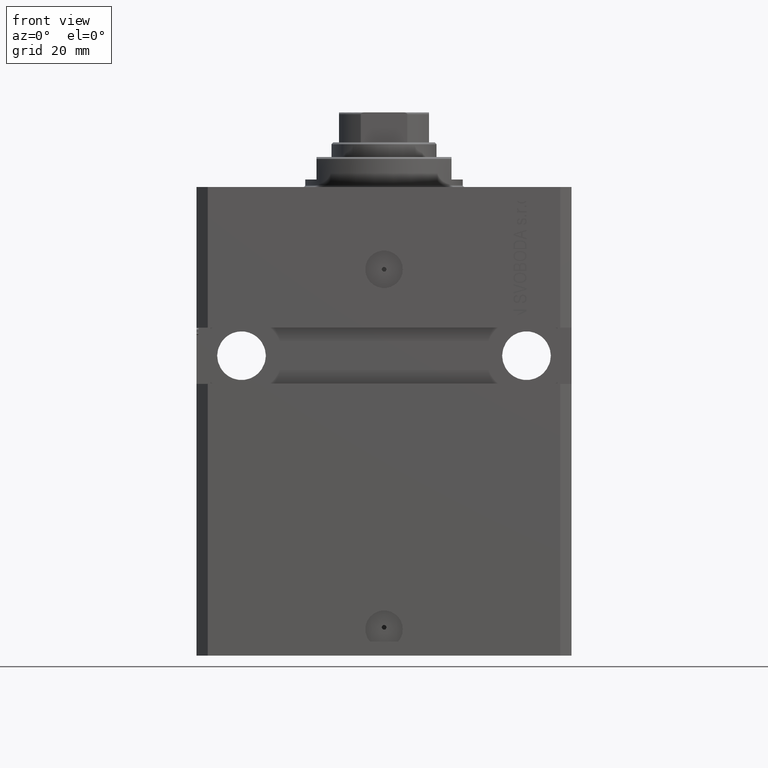
[diagram: clean part render]
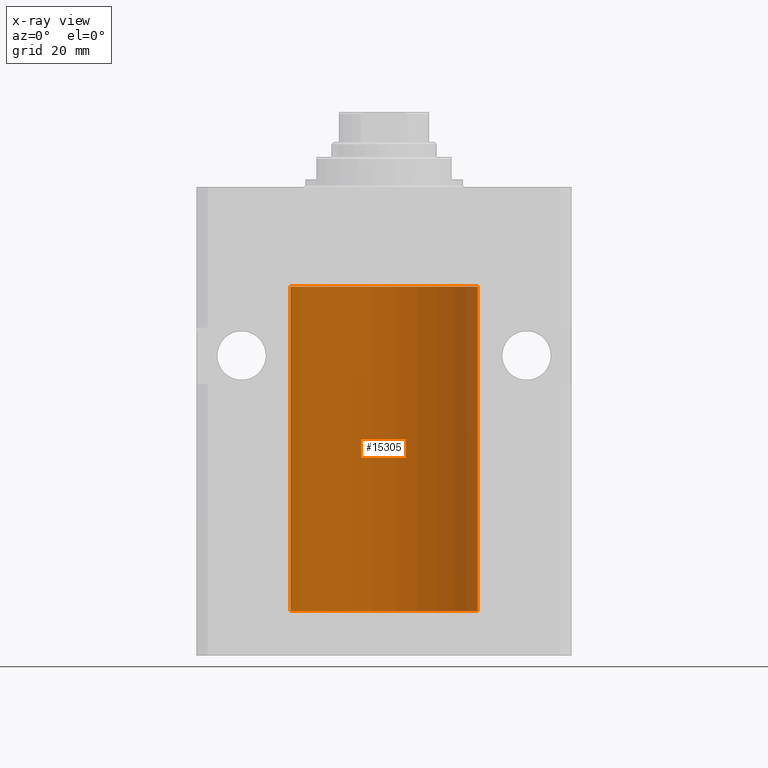
[diagram: x-ray — body ghosted, one internal face saturated and labeled with its STEP entity id]
A machine part, front view, then the same camera in x-ray: the body is ghosted and one INTERNAL B-rep face — a face not visible from any outside direction — is saturated and labeled: STEP entity #15305.
In plain terms, the highlighted cylindrical surface (partial cylindrical patch) has radius 25 mm, axis along (0, 0, 1).
Its self-contained STEP definition (entity closure, byte-faithful):
#2 = CARTESIAN_POINT ( 'NONE',  ( 24.99957883295564187, 0.1636780489658792026, -111.1087296133423479 ) ) ;
#720 = CARTESIAN_POINT ( 'NONE',  ( 25.00000000000000000, -2.424731304940744339E-15, -111.1250000000000000 ) ) ;
#1572 = VERTEX_POINT ( 'NONE', #720 ) ;
#1959 = B_SPLINE_CURVE_WITH_KNOTS ( 'NONE', 3,
 ( #29397, #6276, #6991, #44261, #17975, #3569, #44028, #24793, #28928, #43797, #21141, #35997 ),
 .UNSPECIFIED., .F., .F.,
 ( 4, 2, 2, 2, 2, 4 ),
 ( 1.767227884924492832E-18, 0.0002442639708601802699, 0.0004885279417203586966, 0.0009770558834406861681, 0.001465583825161013640, 0.001954111766881341111 ),
 .UNSPECIFIED. ) ;
#2427 = EDGE_CURVE ( 'NONE', #31365, #47512, #44591, .T. ) ;
#2986 = EDGE_CURVE ( 'NONE', #23958, #23286, #38003, .T. ) ;
#3287 = LINE ( 'NONE', #6937, #3339 ) ;
#3339 = VECTOR ( 'NONE', #47394, 1000.000000000000000 ) ;
#3569 = CARTESIAN_POINT ( 'NONE',  ( -24.99405295648007908, 0.5573304927633258021, -110.1734883293366920 ) ) ;
#4262 = CARTESIAN_POINT ( 'NONE',  ( 24.99815573945175373, 0.3253059702579679247, -109.9414084843269279 ) ) ;
#4302 = VERTEX_POINT ( 'NONE', #42879 ) ;
#5040 = CARTESIAN_POINT ( 'NONE',  ( 25.00000000000000000, 0.000000000000000000, -113.0999999999999943 ) ) ;
#6276 = CARTESIAN_POINT ( 'NONE',  ( -25.00000000000000000, 0.08259386895069686929, -109.8749999999999574 ) ) ;
#6520 = CYLINDRICAL_SURFACE ( 'NONE', #10301, 25.00000000000000000 ) ;
#6937 = CARTESIAN_POINT ( 'NONE',  ( -25.00000000000000000, 3.061616997868383043E-15, -113.0999999999999943 ) ) ;
#6991 = CARTESIAN_POINT ( 'NONE',  ( -24.99957903978828000, 0.1636401650351726467, -109.8912625904798546 ) ) ;
#7041 = VERTEX_POINT ( 'NONE', #26816 ) ;
#7444 = DIRECTION ( 'NONE',  ( 0.000000000000000000, 0.000000000000000000, 1.000000000000000000 ) ) ;
#7741 = ORIENTED_EDGE ( 'NONE', *, *, #2427, .T. ) ;
#8390 = LINE ( 'NONE', #41293, #12245 ) ;
#8647 = CARTESIAN_POINT ( 'NONE',  ( 25.00000000000008171, 3.486950403907965962E-13, -109.8749999999967315 ) ) ;
#10295 = EDGE_CURVE ( 'NONE', #7041, #23286, #36079, .T. ) ;
#10301 = AXIS2_PLACEMENT_3D ( 'NONE', #36229, #18211, #33058 ) ;
#10852 = LINE ( 'NONE', #43993, #36631 ) ;
#11007 = EDGE_CURVE ( 'NONE', #1572, #31365, #36401, .T. ) ;
#11112 = CARTESIAN_POINT ( 'NONE',  ( 0.000000000000000000, 0.000000000000000000, -26.60000000000000142 ) ) ;
#11113 = ORIENTED_EDGE ( 'NONE', *, *, #33178, .T. ) ;
#12245 = VECTOR ( 'NONE', #33976, 1000.000000000000000 ) ;
#14640 = CARTESIAN_POINT ( 'NONE',  ( 24.99218627891505307, 0.6250000000082391871, -110.4999999999990763 ) ) ;
#15285 = DIRECTION ( 'NONE',  ( 1.000000000000000000, 0.000000000000000000, 0.000000000000000000 ) ) ;
#15305 = ADVANCED_FACE ( 'NONE', ( #25271 ), #6520, .F. ) ;
#15354 = EDGE_CURVE ( 'NONE', #7041, #31810, #1959, .T. ) ;
#15487 = CARTESIAN_POINT ( 'NONE',  ( 24.99403021173655404, 0.5586305782632625672, -110.1747611144148635 ) ) ;
#16401 = EDGE_CURVE ( 'NONE', #4302, #31810, #3287, .T. ) ;
#17828 = CARTESIAN_POINT ( 'NONE',  ( 24.99405112861447265, 0.5574133879603476727, -110.8263877786898064 ) ) ;
#17975 = CARTESIAN_POINT ( 'NONE',  ( -24.99711159039963704, 0.3843660423108738455, -110.0004619305507561 ) ) ;
#18211 = DIRECTION ( 'NONE',  ( -0.000000000000000000, -0.000000000000000000, 1.000000000000000000 ) ) ;
#18946 = DIRECTION ( 'NONE',  ( 0.000000000000000000, 0.000000000000000000, 1.000000000000000000 ) ) ;
#20214 = CARTESIAN_POINT ( 'NONE',  ( 24.99218627891505307, 0.6250000000082391871, -110.4999999999990763 ) ) ;
#20925 = CIRCLE ( 'NONE', #27128, 25.00000000000000000 ) ;
#21141 = CARTESIAN_POINT ( 'NONE',  ( -24.99999999999998579, 0.1631672031814571655, -111.1249999999998153 ) ) ;
#22296 = DIRECTION ( 'NONE',  ( 1.000000000000000000, 0.000000000000000000, 0.000000000000000000 ) ) ;
#22928 = CARTESIAN_POINT ( 'NONE',  ( 25.00000000000000000, 0.000000000000000000, -26.60000000000000142 ) ) ;
#23219 = AXIS2_PLACEMENT_3D ( 'NONE', #11112, #7444, #22296 ) ;
#23286 = VERTEX_POINT ( 'NONE', #27946 ) ;
#23958 = VERTEX_POINT ( 'NONE', #22928 ) ;
#24793 = CARTESIAN_POINT ( 'NONE',  ( -24.99218483271614843, 0.6250578298876445782, -110.6628443277814426 ) ) ;
#25119 = DIRECTION ( 'NONE',  ( -0.000000000000000000, -0.000000000000000000, 1.000000000000000000 ) ) ;
#25128 = CARTESIAN_POINT ( 'NONE',  ( 24.99218627891524136, 0.6250000000003219647, -110.6631061550482826 ) ) ;
#25271 = FACE_OUTER_BOUND ( 'NONE', #37260, .T. ) ;
#25574 = ORIENTED_EDGE ( 'NONE', *, *, #29710, .F. ) ;
#25698 = VECTOR ( 'NONE', #25119, 1000.000000000000000 ) ;
#26073 = EDGE_CURVE ( 'NONE', #47512, #23958, #8390, .T. ) ;
#26816 = CARTESIAN_POINT ( 'NONE',  ( -25.00000000000000000, -2.540720905424995806E-14, -109.8750000000000000 ) ) ;
#26928 = ORIENTED_EDGE ( 'NONE', *, *, #15354, .T. ) ;
#27128 = AXIS2_PLACEMENT_3D ( 'NONE', #33324, #18946, #15285 ) ;
#27946 = CARTESIAN_POINT ( 'NONE',  ( -25.00000000000000000, 3.061616997868383043E-15, -26.60000000000000142 ) ) ;
#28242 = CARTESIAN_POINT ( 'NONE',  ( 25.00000000000008171, 3.486950403907965962E-13, -109.8749999999967315 ) ) ;
#28928 = CARTESIAN_POINT ( 'NONE',  ( -24.99402840204668408, 0.5587119681668493154, -110.8251155587110475 ) ) ;
#29397 = CARTESIAN_POINT ( 'NONE',  ( -25.00000000000000000, -2.540720905424995806E-14, -109.8750000000000000 ) ) ;
#29710 = EDGE_CURVE ( 'NONE', #31678, #4302, #20925, .T. ) ;
#29734 = CARTESIAN_POINT ( 'NONE',  ( 25.00000000000000000, -2.424731304940744339E-15, -111.1250000000000000 ) ) ;
#29860 = CARTESIAN_POINT ( 'NONE',  ( 24.99218627891526268, 0.6249999999996124211, -110.3369677794013626 ) ) ;
#31365 = VERTEX_POINT ( 'NONE', #20214 ) ;
#31678 = VERTEX_POINT ( 'NONE', #5040 ) ;
#31810 = VERTEX_POINT ( 'NONE', #37339 ) ;
#32651 = ORIENTED_EDGE ( 'NONE', *, *, #2986, .T. ) ;
#33058 = DIRECTION ( 'NONE',  ( 1.000000000000000000, 0.000000000000000000, 0.000000000000000000 ) ) ;
#33178 = EDGE_CURVE ( 'NONE', #31678, #1572, #10852, .T. ) ;
#33324 = CARTESIAN_POINT ( 'NONE',  ( 0.000000000000000000, 0.000000000000000000, -113.0999999999999943 ) ) ;
#33818 = ORIENTED_EDGE ( 'NONE', *, *, #11007, .T. ) ;
#33976 = DIRECTION ( 'NONE',  ( -0.000000000000000000, -0.000000000000000000, 1.000000000000000000 ) ) ;
#35997 = CARTESIAN_POINT ( 'NONE',  ( -25.00000000000008171, 3.517566575222595158E-13, -111.1250000000032827 ) ) ;
#36079 = LINE ( 'NONE', #39735, #25698 ) ;
#36229 = CARTESIAN_POINT ( 'NONE',  ( 0.000000000000000000, 0.000000000000000000, -113.0999999999999943 ) ) ;
#36401 = B_SPLINE_CURVE_WITH_KNOTS ( 'NONE', 3,
 ( #29734, #44592, #2, #43651, #44359, #17828, #25128, #14640 ),
 .UNSPECIFIED., .F., .F.,
 ( 4, 2, 2, 4 ),
 ( 2.356374505740030593E-18, 0.0002443193446654823016, 0.0004886386893309623263, 0.0009772773786619218337 ),
 .UNSPECIFIED. ) ;
#36631 = VECTOR ( 'NONE', #39610, 1000.000000000000000 ) ;
#37260 = EDGE_LOOP ( 'NONE', ( #44630, #25574, #11113, #33818, #7741, #43095, #32651, #38136, #26928 ) ) ;
#37339 = CARTESIAN_POINT ( 'NONE',  ( -25.00000000000008171, 3.517566575222595158E-13, -111.1250000000032827 ) ) ;
#38003 = CIRCLE ( 'NONE', #23219, 25.00000000000000000 ) ;
#38136 = ORIENTED_EDGE ( 'NONE', *, *, #10295, .F. ) ;
#39610 = DIRECTION ( 'NONE',  ( -0.000000000000000000, -0.000000000000000000, 1.000000000000000000 ) ) ;
#39735 = CARTESIAN_POINT ( 'NONE',  ( -25.00000000000000000, 3.061616997868383043E-15, -113.0999999999999943 ) ) ;
#41293 = CARTESIAN_POINT ( 'NONE',  ( 25.00000000000000000, 0.000000000000000000, -113.0999999999999943 ) ) ;
#41774 = CARTESIAN_POINT ( 'NONE',  ( 24.99218627891505307, 0.6250000000082391871, -110.4999999999990763 ) ) ;
#42879 = CARTESIAN_POINT ( 'NONE',  ( -25.00000000000000000, 3.061616997868383043E-15, -113.0999999999999943 ) ) ;
#43095 = ORIENTED_EDGE ( 'NONE', *, *, #26073, .T. ) ;
#43651 = CARTESIAN_POINT ( 'NONE',  ( 24.99812887437770570, 0.3150953964769092064, -111.0459460934856821 ) ) ;
#43797 = CARTESIAN_POINT ( 'NONE',  ( -24.99815474281802352, 0.3253832813992116324, -111.0585560939375114 ) ) ;
#43993 = CARTESIAN_POINT ( 'NONE',  ( 25.00000000000000000, 0.000000000000000000, -113.0999999999999943 ) ) ;
#44028 = CARTESIAN_POINT ( 'NONE',  ( -24.99218772708281122, 0.6249420913990271220, -110.3367120696675414 ) ) ;
#44261 = CARTESIAN_POINT ( 'NONE',  ( -24.99812965334069759, 0.3150303239408709932, -109.9540190183167852 ) ) ;
#44359 = CARTESIAN_POINT ( 'NONE',  ( 24.99711042419772511, 0.3844422150124162108, -110.9994823321251971 ) ) ;
#44591 = B_SPLINE_CURVE_WITH_KNOTS ( 'NONE', 3,
 ( #41774, #29860, #15487, #4262, #45205, #8647 ),
 .UNSPECIFIED., .F., .F.,
 ( 4, 2, 4 ),
 ( 0.0009772773786619218337, 0.001465694572771605777, 0.001954111766881289937 ),
 .UNSPECIFIED. ) ;
#44592 = CARTESIAN_POINT ( 'NONE',  ( 25.00000000000000355, 0.08261259269783381709, -111.1250000000000142 ) ) ;
#44630 = ORIENTED_EDGE ( 'NONE', *, *, #16401, .F. ) ;
#45205 = CARTESIAN_POINT ( 'NONE',  ( 24.99999999999999645, 0.1631302137355208348, -109.8750000000001563 ) ) ;
#47394 = DIRECTION ( 'NONE',  ( -0.000000000000000000, -0.000000000000000000, 1.000000000000000000 ) ) ;
#47512 = VERTEX_POINT ( 'NONE', #28242 ) ;